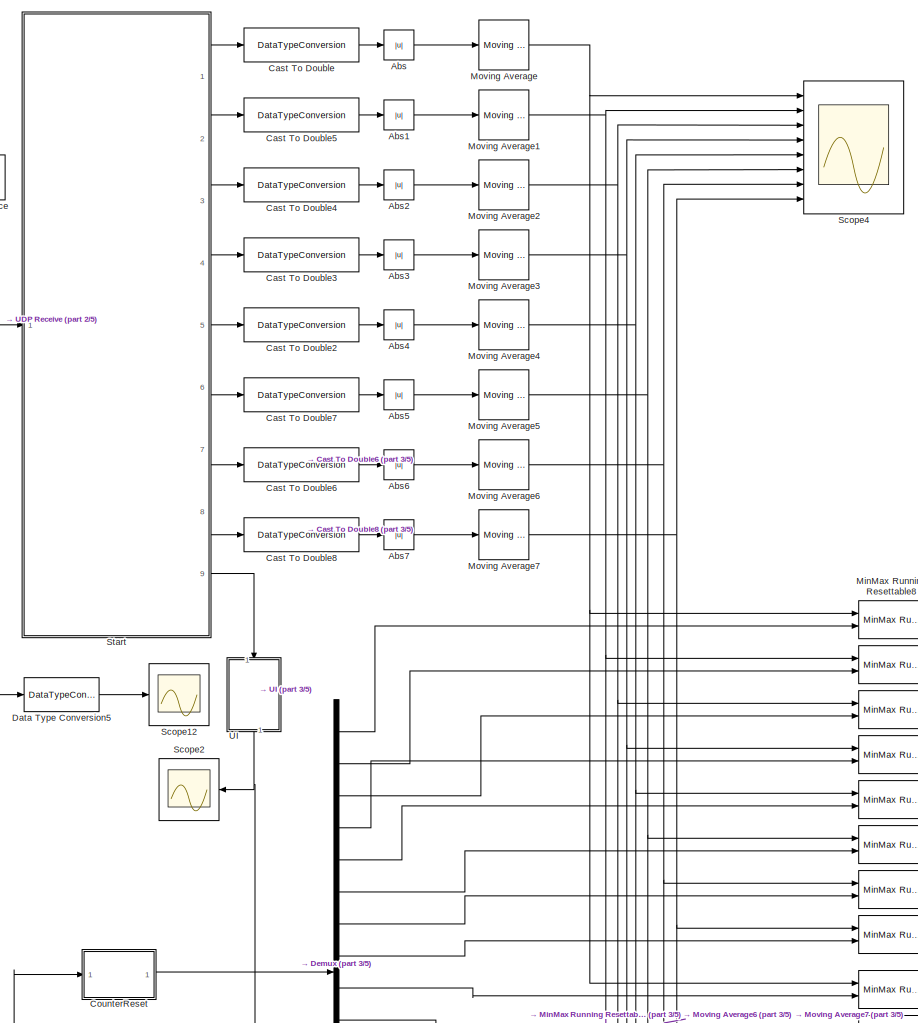
[diagram: root canvas - part 1/5, left side, full height]
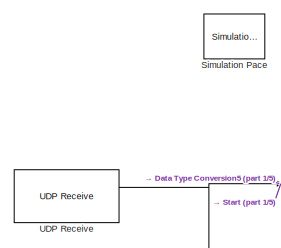
[diagram: root canvas - part 2/5, top left region]
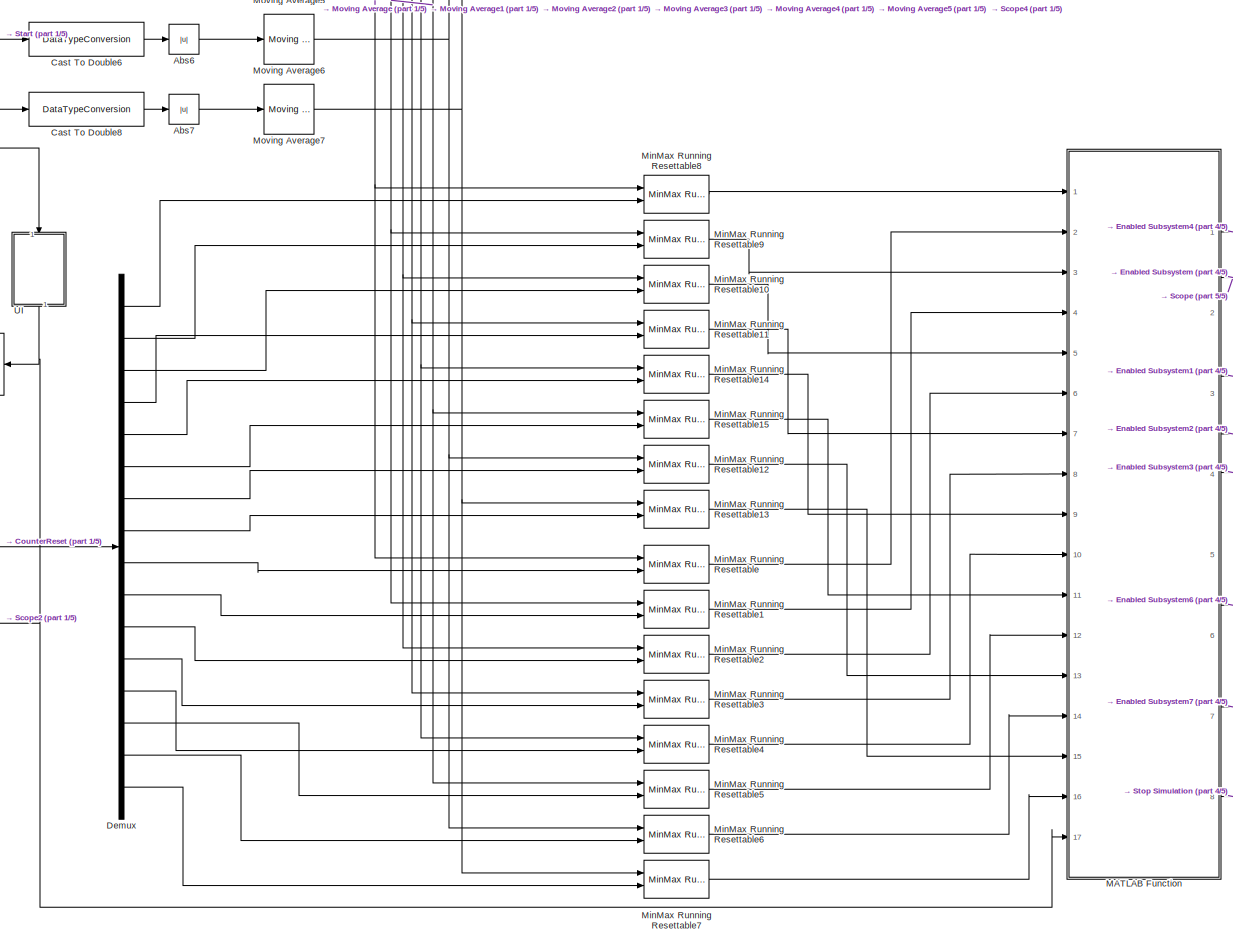
[diagram: root canvas - part 3/5, central region]
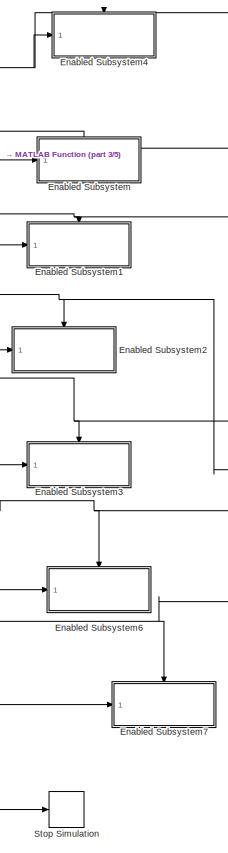
[diagram: root canvas - part 4/5, bottom right region]
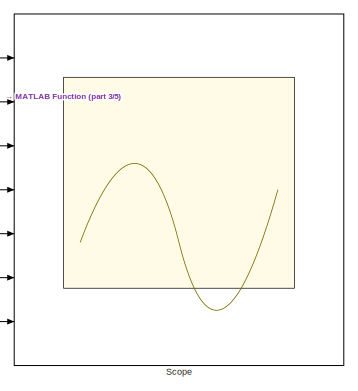
[diagram: root canvas - part 5/5, bottom right region]
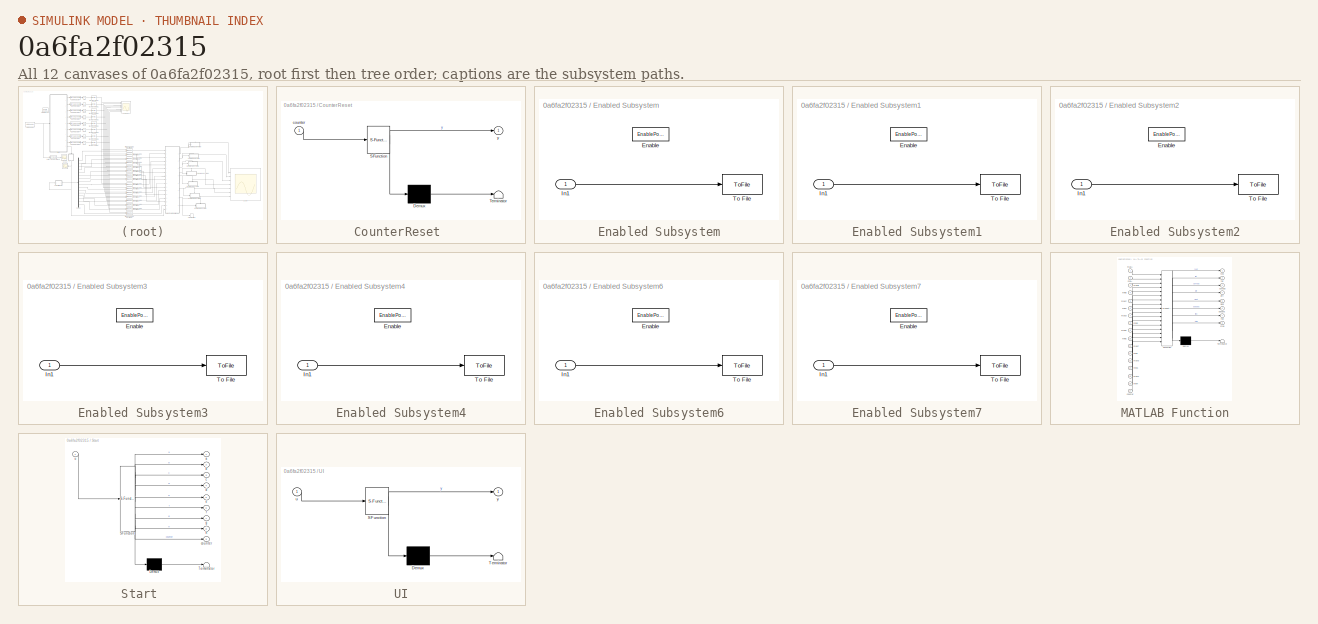
[diagram: thumbnail index - all 12 canvases of the model, root first then tree order]
MODEL slx_0a6fa2f02315
KIND model
CONFIG AbsTol = auto
CONFIG EnableMultiTasking = off
CONFIG FixedStep = auto
CONFIG MaxStep = auto
CONFIG MinStep = auto
CONFIG RelTol = 1e-3
CONFIG SampleTimeConstraint = Unconstrained
CONFIG Solver = VariableStepAuto
CONFIG SolverName = VariableStepAuto
CONFIG StartTime = 0.0
CONFIG StopTime = inf
BLOCK [Abs] Abs
  SaturateOnIntegerOverflow = off
BLOCK [Abs] Abs1
  SaturateOnIntegerOverflow = off
BLOCK [Abs] Abs2
  SaturateOnIntegerOverflow = off
BLOCK [Abs] Abs3
  SaturateOnIntegerOverflow = off
BLOCK [Abs] Abs4
  SaturateOnIntegerOverflow = off
BLOCK [Abs] Abs5
  SaturateOnIntegerOverflow = off
BLOCK [Abs] Abs6
  SaturateOnIntegerOverflow = off
BLOCK [Abs] Abs7
  SaturateOnIntegerOverflow = off
BLOCK [DataTypeConversion] Cast To Double
  OutDataTypeStr = double
  RndMeth = Floor
  SaturateOnIntegerOverflow = off
BLOCK [DataTypeConversion] Cast To Double2
  OutDataTypeStr = double
  RndMeth = Floor
  SaturateOnIntegerOverflow = off
BLOCK [DataTypeConversion] Cast To Double3
  OutDataTypeStr = double
  RndMeth = Floor
  SaturateOnIntegerOverflow = off
BLOCK [DataTypeConversion] Cast To Double4
  OutDataTypeStr = double
  RndMeth = Floor
  SaturateOnIntegerOverflow = off
BLOCK [DataTypeConversion] Cast To Double5
  OutDataTypeStr = double
  RndMeth = Floor
  SaturateOnIntegerOverflow = off
BLOCK [DataTypeConversion] Cast To Double6
  OutDataTypeStr = double
  RndMeth = Floor
  SaturateOnIntegerOverflow = off
BLOCK [DataTypeConversion] Cast To Double7
  OutDataTypeStr = double
  RndMeth = Floor
  SaturateOnIntegerOverflow = off
BLOCK [DataTypeConversion] Cast To Double8
  OutDataTypeStr = double
  RndMeth = Floor
  SaturateOnIntegerOverflow = off
BLOCK [SubSystem] CounterReset 
  ErrorFcn = Stateflow.Translate.translate
  PermitHierarchicalResolution = ExplicitOnly
  Ports = [1, 1]
  RequestExecContextInheritance = off
  SFBlockType = MATLAB Function
  TreatAsAtomicUnit = on
BLOCK [Demux] CounterReset / Demux 
  Outputs = 1
  Ports = [1, 1]
BLOCK [S-Function] CounterReset / SFunction 
  EnableBusSupport = on
  FunctionName = sf_sfun
  PortCounts = [1 2]
  Ports = [1, 2]
  SFcnIsStateOwnerBlock = off
  SFunctionDeploymentMode = off
  Tag = Stateflow S-Function ThresholdCalibration6CHLALALAL 4
BLOCK [Terminator] CounterReset / Terminator 
BLOCK [Inport] CounterReset /counter
  IconDisplay = Port number
BLOCK [Outport] CounterReset /y
  IconDisplay = Port number
BLOCK [DataTypeConversion] Data Type Conversion5
  OutDataTypeStr = single
  RndMeth = Floor
  SaturateOnIntegerOverflow = off
BLOCK [Demux] Demux
  DisplayOption = bar
  Outputs = 16
  Ports = [1, 16]
BLOCK [SubSystem] Enabled Subsystem
  Ports = [1, 0, 1]
  RequestExecContextInheritance = off
  TreatAsAtomicUnit = on
BLOCK [EnablePort] Enabled Subsystem/Enable
  Ports = []
BLOCK [Inport] Enabled Subsystem/In1
  IconDisplay = Port number
BLOCK [ToFile] Enabled Subsystem/To File
  Filename = fist.mat
  MatrixName = fist
  Ports = [1]
BLOCK [SubSystem] Enabled Subsystem1
  Ports = [1, 0, 1]
  RequestExecContextInheritance = off
  TreatAsAtomicUnit = on
BLOCK [EnablePort] Enabled Subsystem1/Enable
  Ports = []
BLOCK [Inport] Enabled Subsystem1/In1
  IconDisplay = Port number
BLOCK [ToFile] Enabled Subsystem1/To File
  Filename = spread.mat
  MatrixName = spread
  Ports = [1]
BLOCK [SubSystem] Enabled Subsystem2
  Ports = [1, 0, 1]
  RequestExecContextInheritance = off
  TreatAsAtomicUnit = on
BLOCK [EnablePort] Enabled Subsystem2/Enable
  Ports = []
BLOCK [Inport] Enabled Subsystem2/In1
  IconDisplay = Port number
BLOCK [ToFile] Enabled Subsystem2/To File
  Filename = left.mat
  MatrixName = left
  Ports = [1]
BLOCK [SubSystem] Enabled Subsystem3
  Ports = [1, 0, 1]
  RequestExecContextInheritance = off
  TreatAsAtomicUnit = on
BLOCK [EnablePort] Enabled Subsystem3/Enable
  Ports = []
BLOCK [Inport] Enabled Subsystem3/In1
  IconDisplay = Port number
BLOCK [ToFile] Enabled Subsystem3/To File
  Filename = right.mat
  MatrixName = minMax
  Ports = [1]
BLOCK [SubSystem] Enabled Subsystem4
  Ports = [1, 0, 1]
  RequestExecContextInheritance = off
  TreatAsAtomicUnit = on
BLOCK [EnablePort] Enabled Subsystem4/Enable
  Ports = []
BLOCK [Inport] Enabled Subsystem4/In1
  IconDisplay = Port number
BLOCK [ToFile] Enabled Subsystem4/To File
  Filename = rest.mat
  MatrixName = fist
  Ports = [1]
BLOCK [SubSystem] Enabled Subsystem6
  Ports = [1, 0, 1]
  RequestExecContextInheritance = off
  TreatAsAtomicUnit = on
BLOCK [EnablePort] Enabled Subsystem6/Enable
  Ports = []
BLOCK [Inport] Enabled Subsystem6/In1
  IconDisplay = Port number
BLOCK [ToFile] Enabled Subsystem6/To File
  Filename = banana.mat
  MatrixName = fish
  Ports = [1]
BLOCK [SubSystem] Enabled Subsystem7
  Ports = [1, 0, 1]
  RequestExecContextInheritance = off
  TreatAsAtomicUnit = on
BLOCK [EnablePort] Enabled Subsystem7/Enable
  Ports = []
BLOCK [Inport] Enabled Subsystem7/In1
  IconDisplay = Port number
BLOCK [ToFile] Enabled Subsystem7/To File
  Filename = fish.mat
  MatrixName = fish
  Ports = [1]
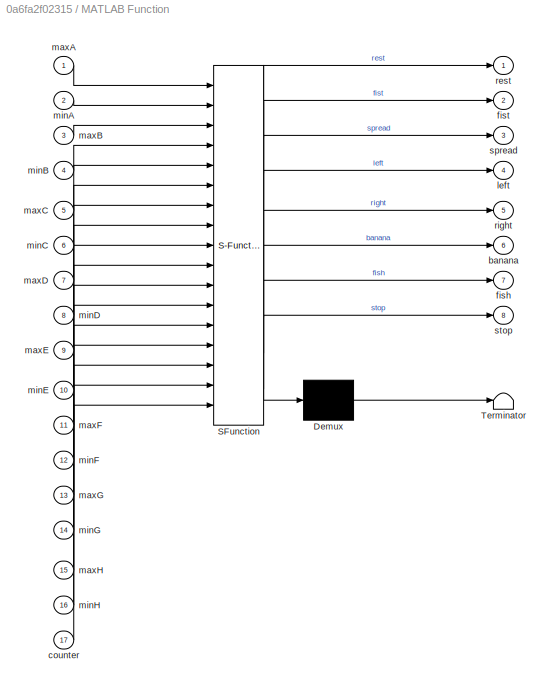
BLOCK [SubSystem] MATLAB Function
  ErrorFcn = Stateflow.Translate.translate
  PermitHierarchicalResolution = ExplicitOnly
  Ports = [17, 8]
  RequestExecContextInheritance = off
  SFBlockType = MATLAB Function
  TreatAsAtomicUnit = on
BLOCK [Demux] MATLAB Function/ Demux 
  Outputs = 1
  Ports = [1, 1]
BLOCK [S-Function] MATLAB Function/ SFunction 
  EnableBusSupport = on
  FunctionName = sf_sfun
  PortCounts = [17 9]
  Ports = [17, 9]
  SFcnIsStateOwnerBlock = off
  SFunctionDeploymentMode = off
  Tag = Stateflow S-Function ThresholdCalibration6CHLALALAL 3
BLOCK [Terminator] MATLAB Function/ Terminator 
BLOCK [Outport] MATLAB Function/banana
  IconDisplay = Port number
  Port = 6
BLOCK [Inport] MATLAB Function/counter
  IconDisplay = Port number
  Port = 17
BLOCK [Outport] MATLAB Function/fish
  IconDisplay = Port number
  Port = 7
BLOCK [Outport] MATLAB Function/fist
  IconDisplay = Port number
  Port = 2
BLOCK [Outport] MATLAB Function/left
  IconDisplay = Port number
  Port = 4
BLOCK [Inport] MATLAB Function/maxA
  IconDisplay = Port number
BLOCK [Inport] MATLAB Function/maxB
  IconDisplay = Port number
  Port = 3
BLOCK [Inport] MATLAB Function/maxC
  IconDisplay = Port number
  Port = 5
BLOCK [Inport] MATLAB Function/maxD
  IconDisplay = Port number
  Port = 7
BLOCK [Inport] MATLAB Function/maxE
  IconDisplay = Port number
  Port = 9
BLOCK [Inport] MATLAB Function/maxF
  IconDisplay = Port number
  Port = 11
BLOCK [Inport] MATLAB Function/maxG
  IconDisplay = Port number
  Port = 13
BLOCK [Inport] MATLAB Function/maxH
  IconDisplay = Port number
  Port = 15
BLOCK [Inport] MATLAB Function/minA
  IconDisplay = Port number
  Port = 2
BLOCK [Inport] MATLAB Function/minB
  IconDisplay = Port number
  Port = 4
BLOCK [Inport] MATLAB Function/minC
  IconDisplay = Port number
  Port = 6
BLOCK [Inport] MATLAB Function/minD
  IconDisplay = Port number
  Port = 8
BLOCK [Inport] MATLAB Function/minE
  IconDisplay = Port number
  Port = 10
BLOCK [Inport] MATLAB Function/minF
  IconDisplay = Port number
  Port = 12
BLOCK [Inport] MATLAB Function/minG
  IconDisplay = Port number
  Port = 14
BLOCK [Inport] MATLAB Function/minH
  IconDisplay = Port number
  Port = 16
BLOCK [Outport] MATLAB Function/rest
  IconDisplay = Port number
BLOCK [Outport] MATLAB Function/right
  IconDisplay = Port number
  Port = 5
BLOCK [Outport] MATLAB Function/spread
  IconDisplay = Port number
  Port = 3
BLOCK [Outport] MATLAB Function/stop
  IconDisplay = Port number
  Port = 8
BLOCK [Reference] MinMax Running Resettable  REF=simulink/Math
Operations/MinMax
Running
Resettable
  Ports = [2, 1]
  SourceBlock = simulink/Math\nOperations/MinMax\nRunning\nResettable
  SourceProductBaseCode = SL
  SourceProductName = Simulink
  SourceType = MinMax Running Resettable
BLOCK [Reference] MinMax Running Resettable1  REF=simulink/Math
Operations/MinMax
Running
Resettable
  Ports = [2, 1]
  SourceBlock = simulink/Math\nOperations/MinMax\nRunning\nResettable
  SourceProductBaseCode = SL
  SourceProductName = Simulink
  SourceType = MinMax Running Resettable
BLOCK [Reference] MinMax Running Resettable10  REF=simulink/Math
Operations/MinMax
Running
Resettable
  Ports = [2, 1]
  SourceBlock = simulink/Math\nOperations/MinMax\nRunning\nResettable
  SourceProductBaseCode = SL
  SourceProductName = Simulink
  SourceType = MinMax Running Resettable
BLOCK [Reference] MinMax Running Resettable11  REF=simulink/Math
Operations/MinMax
Running
Resettable
  Ports = [2, 1]
  SourceBlock = simulink/Math\nOperations/MinMax\nRunning\nResettable
  SourceProductBaseCode = SL
  SourceProductName = Simulink
  SourceType = MinMax Running Resettable
BLOCK [Reference] MinMax Running Resettable12  REF=simulink/Math
Operations/MinMax
Running
Resettable
  Ports = [2, 1]
  SourceBlock = simulink/Math\nOperations/MinMax\nRunning\nResettable
  SourceProductBaseCode = SL
  SourceProductName = Simulink
  SourceType = MinMax Running Resettable
BLOCK [Reference] MinMax Running Resettable13  REF=simulink/Math
Operations/MinMax
Running
Resettable
  Ports = [2, 1]
  SourceBlock = simulink/Math\nOperations/MinMax\nRunning\nResettable
  SourceProductBaseCode = SL
  SourceProductName = Simulink
  SourceType = MinMax Running Resettable
BLOCK [Reference] MinMax Running Resettable14  REF=simulink/Math
Operations/MinMax
Running
Resettable
  Ports = [2, 1]
  SourceBlock = simulink/Math\nOperations/MinMax\nRunning\nResettable
  SourceProductBaseCode = SL
  SourceProductName = Simulink
  SourceType = MinMax Running Resettable
BLOCK [Reference] MinMax Running Resettable15  REF=simulink/Math
Operations/MinMax
Running
Resettable
  Ports = [2, 1]
  SourceBlock = simulink/Math\nOperations/MinMax\nRunning\nResettable
  SourceProductBaseCode = SL
  SourceProductName = Simulink
  SourceType = MinMax Running Resettable
BLOCK [Reference] MinMax Running Resettable2  REF=simulink/Math
Operations/MinMax
Running
Resettable
  Ports = [2, 1]
  SourceBlock = simulink/Math\nOperations/MinMax\nRunning\nResettable
  SourceProductBaseCode = SL
  SourceProductName = Simulink
  SourceType = MinMax Running Resettable
BLOCK [Reference] MinMax Running Resettable3  REF=simulink/Math
Operations/MinMax
Running
Resettable
  Ports = [2, 1]
  SourceBlock = simulink/Math\nOperations/MinMax\nRunning\nResettable
  SourceProductBaseCode = SL
  SourceProductName = Simulink
  SourceType = MinMax Running Resettable
BLOCK [Reference] MinMax Running Resettable4  REF=simulink/Math
Operations/MinMax
Running
Resettable
  Ports = [2, 1]
  SourceBlock = simulink/Math\nOperations/MinMax\nRunning\nResettable
  SourceProductBaseCode = SL
  SourceProductName = Simulink
  SourceType = MinMax Running Resettable
BLOCK [Reference] MinMax Running Resettable5  REF=simulink/Math
Operations/MinMax
Running
Resettable
  Ports = [2, 1]
  SourceBlock = simulink/Math\nOperations/MinMax\nRunning\nResettable
  SourceProductBaseCode = SL
  SourceProductName = Simulink
  SourceType = MinMax Running Resettable
BLOCK [Reference] MinMax Running Resettable6  REF=simulink/Math
Operations/MinMax
Running
Resettable
  Ports = [2, 1]
  SourceBlock = simulink/Math\nOperations/MinMax\nRunning\nResettable
  SourceProductBaseCode = SL
  SourceProductName = Simulink
  SourceType = MinMax Running Resettable
BLOCK [Reference] MinMax Running Resettable7  REF=simulink/Math
Operations/MinMax
Running
Resettable
  Ports = [2, 1]
  SourceBlock = simulink/Math\nOperations/MinMax\nRunning\nResettable
  SourceProductBaseCode = SL
  SourceProductName = Simulink
  SourceType = MinMax Running Resettable
BLOCK [Reference] MinMax Running Resettable8  REF=simulink/Math
Operations/MinMax
Running
Resettable
  Ports = [2, 1]
  SourceBlock = simulink/Math\nOperations/MinMax\nRunning\nResettable
  SourceProductBaseCode = SL
  SourceProductName = Simulink
  SourceType = MinMax Running Resettable
BLOCK [Reference] MinMax Running Resettable9  REF=simulink/Math
Operations/MinMax
Running
Resettable
  Ports = [2, 1]
  SourceBlock = simulink/Math\nOperations/MinMax\nRunning\nResettable
  SourceProductBaseCode = SL
  SourceProductName = Simulink
  SourceType = MinMax Running Resettable
BLOCK [Reference] Moving Average  REF=dspstat3/Moving
Average
  Ports = [1, 1]
  SourceBlock = dspstat3/Moving\nAverage
  SourceProductBaseCode = DS
  SourceProductName = DSP System Toolbox
  SourceType = dsp.simulink.MovingAverage
BLOCK [Reference] Moving Average1  REF=dspstat3/Moving
Average
  Ports = [1, 1]
  SourceBlock = dspstat3/Moving\nAverage
  SourceProductBaseCode = DS
  SourceProductName = DSP System Toolbox
  SourceType = dsp.simulink.MovingAverage
BLOCK [Reference] Moving Average2  REF=dspstat3/Moving
Average
  Ports = [1, 1]
  SourceBlock = dspstat3/Moving\nAverage
  SourceProductBaseCode = DS
  SourceProductName = DSP System Toolbox
  SourceType = dsp.simulink.MovingAverage
BLOCK [Reference] Moving Average3  REF=dspstat3/Moving
Average
  Ports = [1, 1]
  SourceBlock = dspstat3/Moving\nAverage
  SourceProductBaseCode = DS
  SourceProductName = DSP System Toolbox
  SourceType = dsp.simulink.MovingAverage
BLOCK [Reference] Moving Average4  REF=dspstat3/Moving
Average
  Ports = [1, 1]
  SourceBlock = dspstat3/Moving\nAverage
  SourceProductBaseCode = DS
  SourceProductName = DSP System Toolbox
  SourceType = dsp.simulink.MovingAverage
BLOCK [Reference] Moving Average5  REF=dspstat3/Moving
Average
  Ports = [1, 1]
  SourceBlock = dspstat3/Moving\nAverage
  SourceProductBaseCode = DS
  SourceProductName = DSP System Toolbox
  SourceType = dsp.simulink.MovingAverage
BLOCK [Reference] Moving Average6  REF=dspstat3/Moving
Average
  Ports = [1, 1]
  SourceBlock = dspstat3/Moving\nAverage
  SourceProductBaseCode = DS
  SourceProductName = DSP System Toolbox
  SourceType = dsp.simulink.MovingAverage
BLOCK [Reference] Moving Average7  REF=dspstat3/Moving
Average
  Ports = [1, 1]
  SourceBlock = dspstat3/Moving\nAverage
  SourceProductBaseCode = DS
  SourceProductName = DSP System Toolbox
  SourceType = dsp.simulink.MovingAverage
BLOCK [Scope] Scope
  Floating = off
  NumInputPorts = 7
  Ports = [7]
  ScopeSpecificationString = Simulink.scopes.TimeScopeBlockCfg('CurrentConfiguration', extmgr.ConfigurationSet(extmgr.Configuration('Core','General UI',true),extmgr.Configuration('Core','Source UI',true),extmgr.Configuration('Sources','WiredSimulink',true,'DataLoggingVariableName','ScopeData1'),extmgr.Configuration('Visuals','Time Domain',true,'SerializedDisplays',{struct('MinYLimReal','-1.00000','MaxYLimReal','80','YLabelRea...<+3945ch>
BLOCK [Scope] Scope12
  Floating = off
  NumInputPorts = 1
  Ports = [1]
  ScopeSpecificationString = Simulink.scopes.TimeScopeBlockCfg('CurrentConfiguration', extmgr.ConfigurationSet(extmgr.Configuration('Core','General UI',true),extmgr.Configuration('Core','Source UI',true),extmgr.Configuration('Sources','WiredSimulink',true,'DataLoggingVariableName','ScopeData12'),extmgr.Configuration('Visuals','Time Domain',true,'SerializedDisplays',{struct('MinYLimReal','-1.00000','MaxYLimReal','1.00000','YLa...<+8486ch>
BLOCK [Scope] Scope2
  Floating = off
  NumInputPorts = 1
  Ports = [1]
  ScopeSpecificationString = Simulink.scopes.TimeScopeBlockCfg('CurrentConfiguration', extmgr.ConfigurationSet(extmgr.Configuration('Core','General UI',true),extmgr.Configuration('Core','Source UI',true),extmgr.Configuration('Sources','WiredSimulink',true,'DataLoggingVariableName','ScopeData1'),extmgr.Configuration('Visuals','Time Domain',true,'SerializedDisplays',{struct('MinYLimReal','-28.125','MaxYLimReal','263.125','YLabe...<+1456ch>
BLOCK [Scope] Scope4
  Floating = off
  NumInputPorts = 8
  Ports = [8]
  ScopeSpecificationString = Simulink.scopes.TimeScopeBlockCfg('CurrentConfiguration', extmgr.ConfigurationSet(extmgr.Configuration('Core','General UI',true),extmgr.Configuration('Core','Source UI',true),extmgr.Configuration('Sources','WiredSimulink',true,'DataLoggingVariableName','ScopeData1'),extmgr.Configuration('Visuals','Time Domain',true,'SerializedDisplays',{struct('MinYLimReal','-7.02','MaxYLimReal','74.58','YLabelRea...<+6426ch>
BLOCK [Reference] Simulation Pace  REF=aerolibanimutils/Simulation Pace
  AttributesFormatString = %<SleepMode>\n%<SimulationPace> sec/sec
  Ports = []
  SourceBlock = aerolibanimutils/Simulation Pace
  SourceProductBaseCode = AE
  SourceProductName = Aerospace Blockset
  SourceType = Simulation Pace
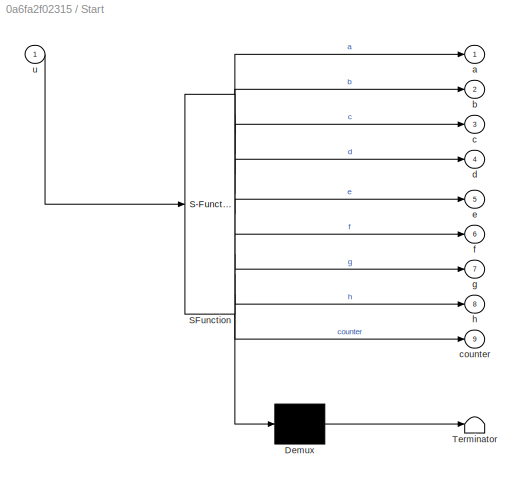
BLOCK [SubSystem] Start 
  ErrorFcn = Stateflow.Translate.translate
  PermitHierarchicalResolution = ExplicitOnly
  Ports = [1, 9]
  RequestExecContextInheritance = off
  SFBlockType = MATLAB Function
  TreatAsAtomicUnit = on
BLOCK [Demux] Start / Demux 
  Outputs = 1
  Ports = [1, 1]
BLOCK [S-Function] Start / SFunction 
  EnableBusSupport = on
  FunctionName = sf_sfun
  PortCounts = [1 10]
  Ports = [1, 10]
  SFcnIsStateOwnerBlock = off
  SFunctionDeploymentMode = off
  Tag = Stateflow S-Function ThresholdCalibration6CHLALALAL 2
BLOCK [Terminator] Start / Terminator 
BLOCK [Outport] Start /a
  IconDisplay = Port number
BLOCK [Outport] Start /b
  IconDisplay = Port number
  Port = 2
BLOCK [Outport] Start /c
  IconDisplay = Port number
  Port = 3
BLOCK [Outport] Start /counter
  IconDisplay = Port number
  Port = 9
BLOCK [Outport] Start /d
  IconDisplay = Port number
  Port = 4
BLOCK [Outport] Start /e
  IconDisplay = Port number
  Port = 5
BLOCK [Outport] Start /f
  IconDisplay = Port number
  Port = 6
BLOCK [Outport] Start /g
  IconDisplay = Port number
  Port = 7
BLOCK [Outport] Start /h
  IconDisplay = Port number
  Port = 8
BLOCK [Inport] Start /u
  IconDisplay = Port number
BLOCK [Stop] Stop Simulation
BLOCK [Reference] UDP Receive  REF=dspnetwork/UDP Receive
  Ports = [0, 2]
  SourceBlock = dspnetwork/UDP Receive
  SourceProductBaseCode = DS
  SourceProductName = DSP System Toolbox
  SourceType = UDP Receive
BLOCK [SubSystem] UI
  ErrorFcn = Stateflow.Translate.translate
  PermitHierarchicalResolution = ExplicitOnly
  Ports = [1, 1]
  RequestExecContextInheritance = off
  SFBlockType = MATLAB Function
  TreatAsAtomicUnit = on
BLOCK [Demux] UI/ Demux 
  Outputs = 1
  Ports = [1, 1]
BLOCK [S-Function] UI/ SFunction 
  EnableBusSupport = on
  FunctionName = sf_sfun
  PortCounts = [1 2]
  Ports = [1, 2]
  SFcnIsStateOwnerBlock = off
  SFunctionDeploymentMode = off
  Tag = Stateflow S-Function ThresholdCalibration6CHLALALAL 1
BLOCK [Terminator] UI/ Terminator 
BLOCK [Inport] UI/u
  IconDisplay = Port number
BLOCK [Outport] UI/y
  IconDisplay = Port number
LINE Abs1:1 -> Moving Average1:1
LINE Abs2:1 -> Moving Average2:1
LINE Abs3:1 -> Moving Average3:1
LINE Abs4:1 -> Moving Average4:1
LINE Abs5:1 -> Moving Average5:1
LINE Abs6:1 -> Moving Average6:1
LINE Abs7:1 -> Moving Average7:1
LINE Abs:1 -> Moving Average:1
LINE Cast To Double2:1 -> Abs4:1
LINE Cast To Double3:1 -> Abs3:1
LINE Cast To Double4:1 -> Abs2:1
LINE Cast To Double5:1 -> Abs1:1
LINE Cast To Double6:1 -> Abs6:1
LINE Cast To Double7:1 -> Abs5:1
LINE Cast To Double8:1 -> Abs7:1
LINE Cast To Double:1 -> Abs:1
LINE CounterReset :1 -> Demux:1
LINE Data Type Conversion5:1 -> Scope12:1
LINE Demux:1 -> MinMax Running Resettable8:2
LINE Demux:10 -> MinMax Running Resettable1:2
LINE Demux:11 -> MinMax Running Resettable2:2
LINE Demux:12 -> MinMax Running Resettable3:2
LINE Demux:13 -> MinMax Running Resettable4:2
LINE Demux:14 -> MinMax Running Resettable5:2
LINE Demux:15 -> MinMax Running Resettable6:2
LINE Demux:16 -> MinMax Running Resettable7:2
LINE Demux:2 -> MinMax Running Resettable9:2
LINE Demux:3 -> MinMax Running Resettable10:2
LINE Demux:4 -> MinMax Running Resettable11:2
LINE Demux:5 -> MinMax Running Resettable14:2
LINE Demux:6 -> MinMax Running Resettable15:2
LINE Demux:7 -> MinMax Running Resettable12:2
LINE Demux:8 -> MinMax Running Resettable13:2
LINE Demux:9 -> MinMax Running Resettable:2
LINE Enabled Subsystem/In1:1 -> Enabled Subsystem/To File:1
LINE Enabled Subsystem1/In1:1 -> Enabled Subsystem1/To File:1
LINE Enabled Subsystem2/In1:1 -> Enabled Subsystem2/To File:1
LINE Enabled Subsystem3/In1:1 -> Enabled Subsystem3/To File:1
LINE Enabled Subsystem4/In1:1 -> Enabled Subsystem4/To File:1
LINE Enabled Subsystem6/In1:1 -> Enabled Subsystem6/To File:1
LINE Enabled Subsystem7/In1:1 -> Enabled Subsystem7/To File:1
NET MATLAB Function:1 -> Enabled Subsystem4:1, Enabled Subsystem4:enable, Scope:1
NET MATLAB Function:2 -> Enabled Subsystem:1, Enabled Subsystem:enable, Scope:2
NET MATLAB Function:3 -> Enabled Subsystem1:1, Enabled Subsystem1:enable, Scope:3
NET MATLAB Function:4 -> Enabled Subsystem2:1, Enabled Subsystem2:enable, Scope:4
NET MATLAB Function:5 -> Enabled Subsystem3:1, Enabled Subsystem3:enable, Scope:5
NET MATLAB Function:6 -> Enabled Subsystem6:1, Enabled Subsystem6:enable, Scope:6
NET MATLAB Function:7 -> Enabled Subsystem7:1, Enabled Subsystem7:enable, Scope:7
LINE MATLAB Function:8 -> Stop Simulation:1
LINE MinMax Running Resettable10:1 -> MATLAB Function:5
LINE MinMax Running Resettable11:1 -> MATLAB Function:7
LINE MinMax Running Resettable12:1 -> MATLAB Function:13
LINE MinMax Running Resettable13:1 -> MATLAB Function:15
LINE MinMax Running Resettable14:1 -> MATLAB Function:9
LINE MinMax Running Resettable15:1 -> MATLAB Function:11
LINE MinMax Running Resettable1:1 -> MATLAB Function:4
LINE MinMax Running Resettable2:1 -> MATLAB Function:6
LINE MinMax Running Resettable3:1 -> MATLAB Function:8
LINE MinMax Running Resettable4:1 -> MATLAB Function:10
LINE MinMax Running Resettable5:1 -> MATLAB Function:12
LINE MinMax Running Resettable6:1 -> MATLAB Function:14
LINE MinMax Running Resettable7:1 -> MATLAB Function:16
LINE MinMax Running Resettable8:1 -> MATLAB Function:1
LINE MinMax Running Resettable9:1 -> MATLAB Function:3
LINE MinMax Running Resettable:1 -> MATLAB Function:2
NET Moving Average1:1 -> MinMax Running Resettable1:1, MinMax Running Resettable9:1, Scope4:2
NET Moving Average2:1 -> MinMax Running Resettable10:1, MinMax Running Resettable2:1, Scope4:3
NET Moving Average3:1 -> MinMax Running Resettable11:1, MinMax Running Resettable3:1, Scope4:4
NET Moving Average4:1 -> MinMax Running Resettable14:1, MinMax Running Resettable4:1, Scope4:5
NET Moving Average5:1 -> MinMax Running Resettable15:1, MinMax Running Resettable5:1, Scope4:6
NET Moving Average6:1 -> MinMax Running Resettable12:1, MinMax Running Resettable6:1, Scope4:7
NET Moving Average7:1 -> MinMax Running Resettable13:1, MinMax Running Resettable7:1, Scope4:8
NET Moving Average:1 -> MinMax Running Resettable8:1, MinMax Running Resettable:1, Scope4:1
LINE Start :1 -> Cast To Double:1
LINE Start :2 -> Cast To Double5:1
LINE Start :3 -> Cast To Double4:1
LINE Start :4 -> Cast To Double3:1
LINE Start :5 -> Cast To Double2:1
LINE Start :6 -> Cast To Double7:1
LINE Start :7 -> Cast To Double6:1
LINE Start :8 -> Cast To Double8:1
LINE Start :9 -> UI:1
NET UDP Receive:1 -> Data Type Conversion5:1, Start :1
NET UI:1 -> CounterReset :1, MATLAB Function:17, Scope2:1
note: NET lines group one-source signal fan-out (src -> all destinations, sorted); 1:1 wires keep LINE
CHART UI states=1 transitions=1
  STATE_LABEL 'eML_blk_kernel()'
  STATE_LABEL "SCRIPT:\nfunction y = fcn(u)\ncoder.extrinsic('uipanel')\ncoder.extrinsic('uicontrol')\n\n% persistent h1 h2 h4 counter;\n\npersistent h1 h2 h4;\n\n\n% if isempty(counter)\n%     counter=0;\n% else\n%     counter=counter+1;\n% end\n\nif isempty(h1)\n    close all;\n    h1 = figure(...\n    'PaperUnits','inches',...\n    'Units','characters',...\n    'Position',[100 20 130.4 26.8461538461538],...\n    'PaperSize',[8.5 1...<+3608ch>"
CHART Start
 states=1 transitions=1
  STATE_LABEL 'eML_blk_kernel()'
  STATE_LABEL 'SCRIPT:\n%a is the output of this block, and fcn(u) is the input required\nfunction [a,b,c,d,e,f,g,h,counter]  = fcn(u)\n\npersistent count \nif isempty(count)\n   count =0; \nend\n\n% We could error message in case we are receiving zero vector\nif isempty(u)==0  \n   count = count+1; \nend\n\ncounter=count;\n%Below the output a is specified as the 3 row of the 8x1 input vector u\na = u(1,:);\nb = u(2,:);\nc = u(3,...<+162ch>'
CHART MATLAB Function states=1 transitions=1
  STATE_LABEL 'eML_blk_kernel()'
  STATE_LABEL 'SCRIPT:\nfunction [rest,fist,spread,left,right,banana,fish, stop] = fcn(maxA, minA, maxB, minB, maxC, minC, maxD, minD, maxE, minE, maxF, minF, maxG, minG, maxH, minH, counter)\n    \n    stop=0;\n    rest=zeros(1,16);\n    fist=zeros(1,16);\n    spread=zeros(1,16);\n    left=zeros(1,16);\n    right=zeros(1,16);\n    banana=zeros(1,16);\n    fish=zeros(1,16);\n\nif counter==250\n    rest=[maxA minA maxB minB m...<+807ch>'
CHART CounterReset
 states=1 transitions=1
  STATE_LABEL 'eML_blk_kernel()'
  STATE_LABEL 'SCRIPT:\nfunction y = fcn(counter)\nif counter==50\n    y=[1 1 1 1 1 1 1 1 1 1 1 1 1 1 1 1];\nelseif counter==550\n    y=[1 1 1 1 1 1 1 1 1 1 1 1 1 1 1 1];\nelseif counter==1050\n    y=[1 1 1 1 1 1 1 1 1 1 1 1 1 1 1 1];\nelseif counter==1550\n    y=[1 1 1 1 1 1 1 1 1 1 1 1 1 1 1 1];\nelseif counter==2050\n    y=[1 1 1 1 1 1 1 1 1 1 1 1 1 1 1 1];\nelseif counter==2550\n    y=[1 1 1 1 1 1 1 1 1 1 1 1 1 1 1 1];\n\n...<+33ch>'
